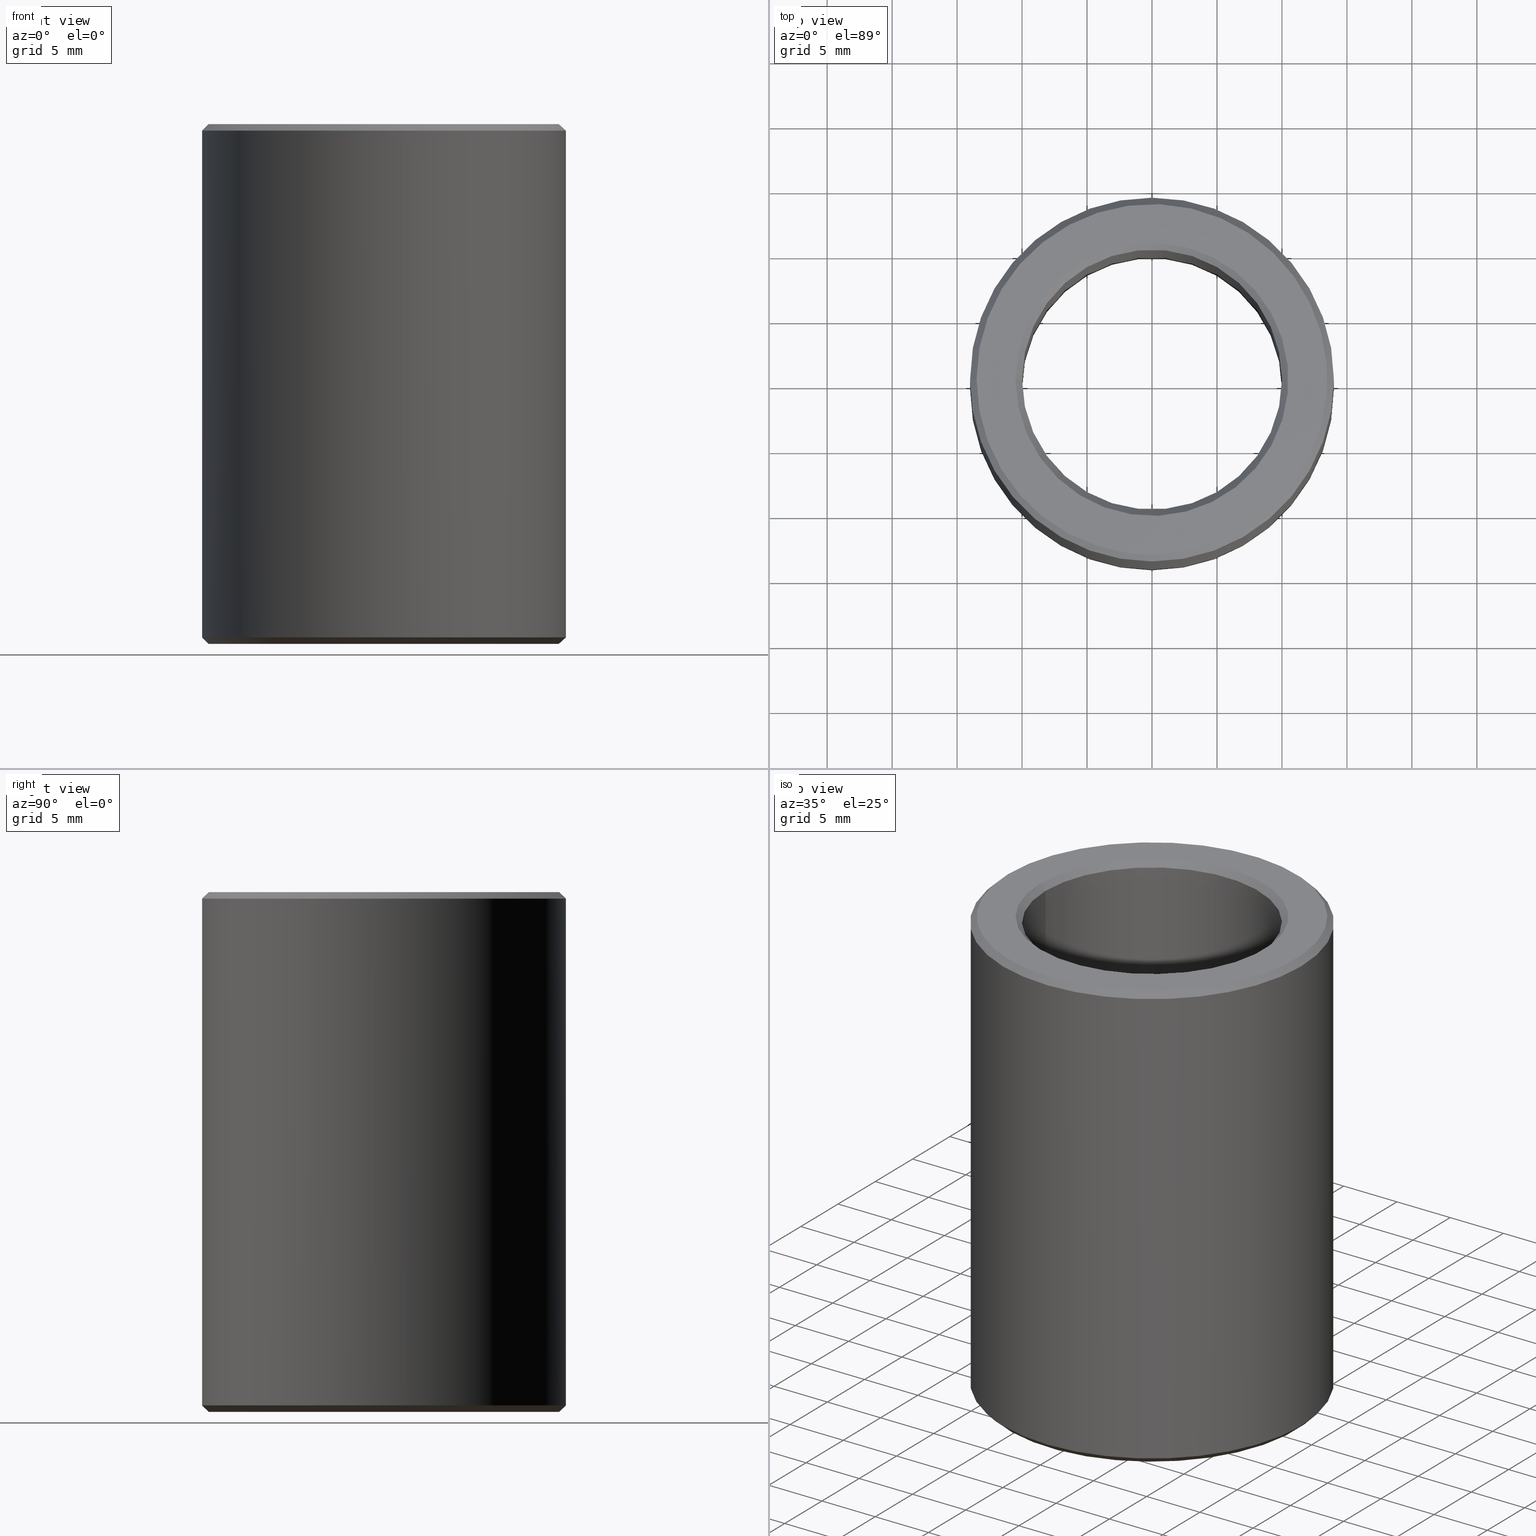
[diagram: canonical four-view strip — front | top / right | iso, engineering-drawing reading convention]
A machine part, canonical four-view strip (front | top / right | iso — engineering-drawing reading convention). The complete STEP part file that produces these views, byte-faithful:
ISO-10303-21;
HEADER;
FILE_DESCRIPTION(('STEP AP203'),'1');
FILE_NAME('580-LM2040.stp','2016-12-28T11:19:13',(' '),(' '),'Spatial InterOp 3D',' ',' ');
FILE_SCHEMA(('CONFIG_CONTROL_DESIGN'));
ENDSEC;
DATA;
#1=DESIGN_CONTEXT('',#51,'design');
#2=APPLICATION_PROTOCOL_DEFINITION('INTERNATIONAL STANDARD','config_control_design',1994,#51);
#3=PRODUCT_CATEGORY_RELATIONSHIP('NONE','NONE',#52,#53);
#4=DATE_AND_TIME(#54,#55);
#5=DATE_TIME_ROLE('creation_date');
#6=DATE_TIME_ROLE('classification_date');
#7=PERSON_AND_ORGANIZATION_ROLE('creator');
#8=PERSON_AND_ORGANIZATION_ROLE('design_supplier');
#9=PERSON_AND_ORGANIZATION_ROLE('classification_officer');
#10=PERSON_AND_ORGANIZATION_ROLE('design_owner');
#11=APPROVAL_PERSON_ORGANIZATION(#56,#57,#58);
#12=APPROVAL_DATE_TIME(#4,#57);
#13=CC_DESIGN_APPROVAL(#57,(#59,#60,#61));
#14=CC_DESIGN_DATE_AND_TIME_ASSIGNMENT(#4,#5,(#61));
#15=CC_DESIGN_DATE_AND_TIME_ASSIGNMENT(#4,#6,(#59));
#16=CC_DESIGN_PERSON_AND_ORGANIZATION_ASSIGNMENT(#56,#10,(#62));
#17=CC_DESIGN_PERSON_AND_ORGANIZATION_ASSIGNMENT(#56,#7,(#61));
#18=CC_DESIGN_PERSON_AND_ORGANIZATION_ASSIGNMENT(#56,#7,(#60));
#19=CC_DESIGN_PERSON_AND_ORGANIZATION_ASSIGNMENT(#56,#8,(#60));
#20=CC_DESIGN_SECURITY_CLASSIFICATION(#59,(#60));
#21=CC_DESIGN_PERSON_AND_ORGANIZATION_ASSIGNMENT(#56,#9,(#59));
#22=SHAPE_DEFINITION_REPRESENTATION(#63,#64);
#23=DESIGN_CONTEXT('',#65,'design');
#24=APPLICATION_PROTOCOL_DEFINITION('INTERNATIONAL STANDARD','config_control_design',1994,#65);
#25=PRODUCT_CATEGORY_RELATIONSHIP('NONE','NONE',#66,#67);
#26=DATE_AND_TIME(#68,#69);
#27=DATE_TIME_ROLE('creation_date');
#28=DATE_TIME_ROLE('classification_date');
#29=PERSON_AND_ORGANIZATION_ROLE('creator');
#30=PERSON_AND_ORGANIZATION_ROLE('design_supplier');
#31=PERSON_AND_ORGANIZATION_ROLE('classification_officer');
#32=PERSON_AND_ORGANIZATION_ROLE('design_owner');
#33=APPROVAL_PERSON_ORGANIZATION(#70,#71,#72);
#34=APPROVAL_DATE_TIME(#26,#71);
#35=CC_DESIGN_APPROVAL(#71,(#73,#74,#75));
#36=CC_DESIGN_DATE_AND_TIME_ASSIGNMENT(#26,#27,(#75));
#37=CC_DESIGN_DATE_AND_TIME_ASSIGNMENT(#26,#28,(#73));
#38=CC_DESIGN_PERSON_AND_ORGANIZATION_ASSIGNMENT(#70,#32,(#76));
#39=CC_DESIGN_PERSON_AND_ORGANIZATION_ASSIGNMENT(#70,#29,(#75));
#40=CC_DESIGN_PERSON_AND_ORGANIZATION_ASSIGNMENT(#70,#29,(#74));
#41=CC_DESIGN_PERSON_AND_ORGANIZATION_ASSIGNMENT(#70,#30,(#74));
#42=CC_DESIGN_SECURITY_CLASSIFICATION(#73,(#74));
#43=CC_DESIGN_PERSON_AND_ORGANIZATION_ASSIGNMENT(#70,#31,(#73));
#44=CONTEXT_DEPENDENT_SHAPE_REPRESENTATION(#77,#78);
#45=SHAPE_DEFINITION_REPRESENTATION(#79,#80);
#46=SHAPE_REPRESENTATION_RELATIONSHIP('NONE','NONE',#80,#81);
#47= (GEOMETRIC_REPRESENTATION_CONTEXT(3)GLOBAL_UNCERTAINTY_ASSIGNED_CONTEXT((#84))GLOBAL_UNIT_ASSIGNED_CONTEXT((#86,#87,#88))REPRESENTATION_CONTEXT('NONE','WORKSPACE'));
#51=APPLICATION_CONTEXT('CONFIGURATION CONTROLLED 3D DESIGNS OF MECHANICAL PARTS AND ASSEMBLIES');
#52=PRODUCT_CATEGORY('part','NONE');
#53=PRODUCT_RELATED_PRODUCT_CATEGORY('detail',' ',(#62));
#54=CALENDAR_DATE(2016,28,11);
#55=LOCAL_TIME(12,19,13.0,#90);
#56=PERSON_AND_ORGANIZATION(#91,#92);
#57=APPROVAL(#93,'SOLID MODEL');
#58=APPROVAL_ROLE('APPROVED');
#59=SECURITY_CLASSIFICATION('','',#94);
#60=PRODUCT_DEFINITION_FORMATION_WITH_SPECIFIED_SOURCE(' ','NONE',#62,.NOT_KNOWN.);
#61=PRODUCT_DEFINITION('NONE','NONE',#60,#1);
#62=PRODUCT('','','PART--DESC',(#95));
#63=PRODUCT_DEFINITION_SHAPE('NONE','NONE',#61);
#64=SHAPE_REPRESENTATION('',(#96,#97),#98);
#65=APPLICATION_CONTEXT('CONFIGURATION CONTROLLED 3D DESIGNS OF MECHANICAL PARTS AND ASSEMBLIES');
#66=PRODUCT_CATEGORY('part','NONE');
#67=PRODUCT_RELATED_PRODUCT_CATEGORY('detail',' ',(#76));
#68=CALENDAR_DATE(2016,28,11);
#69=LOCAL_TIME(12,19,13.0,#99);
#70=PERSON_AND_ORGANIZATION(#100,#101);
#71=APPROVAL(#102,'SOLID MODEL');
#72=APPROVAL_ROLE('APPROVED');
#73=SECURITY_CLASSIFICATION('','',#103);
#74=PRODUCT_DEFINITION_FORMATION_WITH_SPECIFIED_SOURCE(' ','NONE',#76,.NOT_KNOWN.);
#75=PRODUCT_DEFINITION('580-LM20x40','580-LM20x40',#74,#23);
#76=PRODUCT('580-LM20x40','580-LM20x40','PART-580-LM20x40-DESC',(#104));
#77=(REPRESENTATION_RELATIONSHIP('','',#80,#64)REPRESENTATION_RELATIONSHIP_WITH_TRANSFORMATION(#107)SHAPE_REPRESENTATION_RELATIONSHIP());
#78=PRODUCT_DEFINITION_SHAPE('NAUO-PROD-DEF','NAUO-PROD-DEF',#109);
#79=PRODUCT_DEFINITION_SHAPE('NONE','NONE',#75);
#80=SHAPE_REPRESENTATION('580-LM20x40',(#96),#98);
#81=ADVANCED_BREP_SHAPE_REPRESENTATION('',(#110),#47);
#84=UNCERTAINTY_MEASURE_WITH_UNIT(LENGTH_MEASURE(1.0E-006),#86,'','');
#86= (CONVERSION_BASED_UNIT('METRE',#113)LENGTH_UNIT()NAMED_UNIT(#116));
#87= (NAMED_UNIT(#118)PLANE_ANGLE_UNIT()SI_UNIT($,.RADIAN.));
#88= (NAMED_UNIT(#118)SOLID_ANGLE_UNIT()SI_UNIT($,.STERADIAN.));
#90=COORDINATED_UNIVERSAL_TIME_OFFSET(1,0,.AHEAD.);
#91=PERSON('','UNSPECIFIED',$,$,$,$);
#92=ORGANIZATION('UNSPECIFIED','UNSPECIFIED','UNSPECIFIED');
#93=APPROVAL_STATUS('approved');
#94=SECURITY_CLASSIFICATION_LEVEL('unclassified');
#95=MECHANICAL_CONTEXT('',#51,'mechanical');
#96=AXIS2_PLACEMENT_3D('',#124,#125,#126);
#97=AXIS2_PLACEMENT_3D('',#127,#128,#129);
#98= (GEOMETRIC_REPRESENTATION_CONTEXT(3)GLOBAL_UNCERTAINTY_ASSIGNED_CONTEXT((#132))GLOBAL_UNIT_ASSIGNED_CONTEXT((#134,#135,#136))REPRESENTATION_CONTEXT('NONE','WORKSPACE'));
#99=COORDINATED_UNIVERSAL_TIME_OFFSET(1,0,.AHEAD.);
#100=PERSON('','UNSPECIFIED',$,$,$,$);
#101=ORGANIZATION('UNSPECIFIED','UNSPECIFIED','UNSPECIFIED');
#102=APPROVAL_STATUS('approved');
#103=SECURITY_CLASSIFICATION_LEVEL('unclassified');
#104=MECHANICAL_CONTEXT('',#65,'mechanical');
#107=ITEM_DEFINED_TRANSFORMATION('','',#96,#97);
#109=NEXT_ASSEMBLY_USAGE_OCCURRENCE('580-LM20x40','580-LM20x40','580-LM20x40',#61,#75,$);
#110=MANIFOLD_SOLID_BREP('',#138);
#113=LENGTH_MEASURE_WITH_UNIT(LENGTH_MEASURE(1.0),#139);
#116=DIMENSIONAL_EXPONENTS(1.0,0.0,0.0,0.0,0.0,0.0,0.0);
#118=DIMENSIONAL_EXPONENTS(0.0,0.0,0.0,0.0,0.0,0.0,0.0);
#124=CARTESIAN_POINT('',(0.0,0.0,0.0));
#125=DIRECTION('',(0.0,0.0,1.0));
#126=DIRECTION('',(1.0,0.0,0.0));
#127=CARTESIAN_POINT('',(0.0,0.0,0.0));
#128=DIRECTION('',(5.48707263966374E-016,-5.48707263966374E-016,1.0));
#129=DIRECTION('',(-1.60812264967663E-016,1.0,5.48707263966374E-016));
#132=UNCERTAINTY_MEASURE_WITH_UNIT(LENGTH_MEASURE(1.0E-006),#134,'','');
#134= (CONVERSION_BASED_UNIT('METRE',#142)LENGTH_UNIT()NAMED_UNIT(#145));
#135= (NAMED_UNIT(#147)PLANE_ANGLE_UNIT()SI_UNIT($,.RADIAN.));
#136= (NAMED_UNIT(#147)SOLID_ANGLE_UNIT()SI_UNIT($,.STERADIAN.));
#138=CLOSED_SHELL('',(#153,#154,#155,#156,#157,#158,#159,#160,#161,#162,#163,#164,#165,#166,#167));
#139= (NAMED_UNIT(#116)LENGTH_UNIT()SI_UNIT($,.METRE.));
#142=LENGTH_MEASURE_WITH_UNIT(LENGTH_MEASURE(1.0),#169);
#145=DIMENSIONAL_EXPONENTS(1.0,0.0,0.0,0.0,0.0,0.0,0.0);
#147=DIMENSIONAL_EXPONENTS(0.0,0.0,0.0,0.0,0.0,0.0,0.0);
#153=ADVANCED_FACE('',(#170),#171,.F.);
#154=ADVANCED_FACE('',(#172),#173,.T.);
#155=ADVANCED_FACE('',(#174),#175,.F.);
#156=ADVANCED_FACE('',(#176,#177,#178),#179,.F.);
#157=ADVANCED_FACE('',(#180,#181),#182,.F.);
#158=ADVANCED_FACE('',(#183,#184),#185,.F.);
#159=ADVANCED_FACE('',(#186,#187),#188,.T.);
#160=ADVANCED_FACE('',(#189,#190),#191,.T.);
#161=ADVANCED_FACE('',(#192,#193),#194,.T.);
#162=ADVANCED_FACE('',(#195,#196),#197,.T.);
#163=ADVANCED_FACE('',(#198,#199),#200,.T.);
#164=ADVANCED_FACE('',(#201),#202,.F.);
#165=ADVANCED_FACE('',(#203),#204,.F.);
#166=ADVANCED_FACE('',(#205),#206,.T.);
#167=ADVANCED_FACE('',(#207),#208,.F.);
#169= (NAMED_UNIT(#145)LENGTH_UNIT()SI_UNIT($,.METRE.));
#170=FACE_OUTER_BOUND('',#210,.T.);
#171=CYLINDRICAL_SURFACE('',#211,0.00075);
#172=FACE_OUTER_BOUND('',#212,.T.);
#173=PLANE('',#213);
#174=FACE_OUTER_BOUND('',#214,.T.);
#175=CYLINDRICAL_SURFACE('',#215,0.00075);
#176=FACE_OUTER_BOUND('',#216,.T.);
#177=FACE_OUTER_BOUND('',#217,.T.);
#178=FACE_BOUND('',#218,.T.);
#179=CYLINDRICAL_SURFACE('',#219,0.01);
#180=FACE_BOUND('',#220,.T.);
#181=FACE_OUTER_BOUND('',#221,.T.);
#182=CONICAL_SURFACE('',#222,0.0105,0.785398163397448);
#183=FACE_OUTER_BOUND('',#223,.T.);
#184=FACE_BOUND('',#224,.T.);
#185=CONICAL_SURFACE('',#225,0.01,0.785398163397446);
#186=FACE_OUTER_BOUND('',#226,.T.);
#187=FACE_BOUND('',#227,.T.);
#188=PLANE('',#228);
#189=FACE_OUTER_BOUND('',#229,.T.);
#190=FACE_BOUND('',#230,.T.);
#191=CONICAL_SURFACE('',#231,0.0135,0.785398163397432);
#192=FACE_OUTER_BOUND('',#232,.T.);
#193=FACE_OUTER_BOUND('',#233,.T.);
#194=CYLINDRICAL_SURFACE('',#234,0.014);
#195=FACE_BOUND('',#235,.T.);
#196=FACE_OUTER_BOUND('',#236,.T.);
#197=CONICAL_SURFACE('',#237,0.014,0.785398163397448);
#198=FACE_BOUND('',#238,.T.);
#199=FACE_OUTER_BOUND('',#239,.T.);
#200=PLANE('',#240);
#201=FACE_OUTER_BOUND('',#241,.T.);
#202=SPHERICAL_SURFACE('',#242,0.00075);
#203=FACE_OUTER_BOUND('',#243,.T.);
#204=SPHERICAL_SURFACE('',#244,0.00075);
#205=FACE_OUTER_BOUND('',#245,.T.);
#206=PLANE('',#246);
#207=FACE_OUTER_BOUND('',#247,.T.);
#208=CYLINDRICAL_SURFACE('',#248,0.00075);
#210=EDGE_LOOP('',(#249,#250,#251,#252));
#211=AXIS2_PLACEMENT_3D('',#253,#254,#255);
#212=EDGE_LOOP('',(#256,#257,#258,#259));
#213=AXIS2_PLACEMENT_3D('',#260,#261,#262);
#214=EDGE_LOOP('',(#263,#264,#265,#266));
#215=AXIS2_PLACEMENT_3D('',#267,#268,#269);
#216=EDGE_LOOP('',(#270));
#217=EDGE_LOOP('',(#271));
#218=EDGE_LOOP('',(#272,#273,#274,#275));
#219=AXIS2_PLACEMENT_3D('',#276,#277,#278);
#220=EDGE_LOOP('',(#279));
#221=EDGE_LOOP('',(#280));
#222=AXIS2_PLACEMENT_3D('',#281,#282,#283);
#223=EDGE_LOOP('',(#284));
#224=EDGE_LOOP('',(#285));
#225=AXIS2_PLACEMENT_3D('',#286,#287,#288);
#226=EDGE_LOOP('',(#289));
#227=EDGE_LOOP('',(#290));
#228=AXIS2_PLACEMENT_3D('',#291,#292,#293);
#229=EDGE_LOOP('',(#294));
#230=EDGE_LOOP('',(#295));
#231=AXIS2_PLACEMENT_3D('',#296,#297,#298);
#232=EDGE_LOOP('',(#299));
#233=EDGE_LOOP('',(#300));
#234=AXIS2_PLACEMENT_3D('',#301,#302,#303);
#235=EDGE_LOOP('',(#304));
#236=EDGE_LOOP('',(#305));
#237=AXIS2_PLACEMENT_3D('',#306,#307,#308);
#238=EDGE_LOOP('',(#309));
#239=EDGE_LOOP('',(#310));
#240=AXIS2_PLACEMENT_3D('',#311,#312,#313);
#241=EDGE_LOOP('',(#314,#315));
#242=AXIS2_PLACEMENT_3D('',#316,#317,#318);
#243=EDGE_LOOP('',(#319,#320));
#244=AXIS2_PLACEMENT_3D('',#321,#322,#323);
#245=EDGE_LOOP('',(#324,#325,#326,#327));
#246=AXIS2_PLACEMENT_3D('',#328,#329,#330);
#247=EDGE_LOOP('',(#331,#332,#333,#334));
#248=AXIS2_PLACEMENT_3D('',#335,#336,#337);
#249=ORIENTED_EDGE('',*,*,#338,.F.);
#250=ORIENTED_EDGE('',*,*,#339,.T.);
#251=ORIENTED_EDGE('',*,*,#340,.T.);
#252=ORIENTED_EDGE('',*,*,#341,.F.);
#253=CARTESIAN_POINT('',(2.60208521396521E-018,-0.011,0.00375));
#254=DIRECTION('',(0.0,1.0,0.0));
#255=DIRECTION('',(0.0,0.0,1.0));
#256=ORIENTED_EDGE('',*,*,#342,.F.);
#257=ORIENTED_EDGE('',*,*,#343,.T.);
#258=ORIENTED_EDGE('',*,*,#338,.T.);
#259=ORIENTED_EDGE('',*,*,#344,.F.);
#260=CARTESIAN_POINT('',(-0.00075,-0.011,0.03625));
#261=DIRECTION('',(1.0,0.0,1.23432247329119E-016));
#262=DIRECTION('',(-1.23432247329119E-016,0.0,1.0));
#263=ORIENTED_EDGE('',*,*,#345,.F.);
#264=ORIENTED_EDGE('',*,*,#346,.T.);
#265=ORIENTED_EDGE('',*,*,#342,.T.);
#266=ORIENTED_EDGE('',*,*,#347,.F.);
#267=CARTESIAN_POINT('',(6.50521303491303E-019,-0.011,0.03625));
#268=DIRECTION('',(0.0,1.0,0.0));
#269=DIRECTION('',(0.0,0.0,1.0));
#270=ORIENTED_EDGE('',*,*,#348,.T.);
#271=ORIENTED_EDGE('',*,*,#349,.F.);
#272=ORIENTED_EDGE('',*,*,#350,.T.);
#273=ORIENTED_EDGE('',*,*,#347,.T.);
#274=ORIENTED_EDGE('',*,*,#344,.T.);
#275=ORIENTED_EDGE('',*,*,#341,.T.);
#276=CARTESIAN_POINT('',(0.0,0.0,-1.0842021724855E-019));
#277=DIRECTION('',(0.0,-6.12323399573677E-017,-1.0));
#278=DIRECTION('',(0.0,1.0,-6.12323399573677E-017));
#279=ORIENTED_EDGE('',*,*,#349,.T.);
#280=ORIENTED_EDGE('',*,*,#351,.F.);
#281=CARTESIAN_POINT('',(0.0,0.0,0.04));
#282=DIRECTION('',(-0.0,6.12323399573677E-017,1.0));
#283=DIRECTION('',(0.0,-1.0,6.12323399573677E-017));
#284=ORIENTED_EDGE('',*,*,#352,.T.);
#285=ORIENTED_EDGE('',*,*,#348,.F.);
#286=CARTESIAN_POINT('',(0.0,0.0,0.0005));
#287=DIRECTION('',(0.0,-6.12323399573677E-017,-1.0));
#288=DIRECTION('',(0.0,1.0,-6.12323399573677E-017));
#289=ORIENTED_EDGE('',*,*,#353,.T.);
#290=ORIENTED_EDGE('',*,*,#352,.F.);
#291=CARTESIAN_POINT('',(0.0105,0.0,-2.22261445359529E-018));
#292=DIRECTION('',(0.0,-6.12323399573677E-017,-1.0));
#293=DIRECTION('',(0.0,1.0,-6.12323399573677E-017));
#294=ORIENTED_EDGE('',*,*,#354,.T.);
#295=ORIENTED_EDGE('',*,*,#353,.F.);
#296=CARTESIAN_POINT('',(0.0,0.0,-2.05998412772246E-018));
#297=DIRECTION('',(-0.0,6.12323399573677E-017,1.0));
#298=DIRECTION('',(0.0,-1.0,6.12323399573677E-017));
#299=ORIENTED_EDGE('',*,*,#355,.T.);
#300=ORIENTED_EDGE('',*,*,#354,.F.);
#301=CARTESIAN_POINT('',(0.0,0.0,-1.0842021724855E-019));
#302=DIRECTION('',(0.0,-6.12323399573677E-017,-1.0));
#303=DIRECTION('',(0.0,1.0,-6.12323399573677E-017));
#304=ORIENTED_EDGE('',*,*,#356,.T.);
#305=ORIENTED_EDGE('',*,*,#355,.F.);
#306=CARTESIAN_POINT('',(0.0,0.0,0.0395));
#307=DIRECTION('',(0.0,-6.12323399573677E-017,-1.0));
#308=DIRECTION('',(0.0,1.0,-6.12323399573677E-017));
#309=ORIENTED_EDGE('',*,*,#351,.T.);
#310=ORIENTED_EDGE('',*,*,#356,.F.);
#311=CARTESIAN_POINT('',(0.0135,0.0,0.04));
#312=DIRECTION('',(0.0,6.12323399573677E-017,1.0));
#313=DIRECTION('',(0.0,-1.0,6.12323399573677E-017));
#314=ORIENTED_EDGE('',*,*,#357,.F.);
#315=ORIENTED_EDGE('',*,*,#346,.F.);
#316=CARTESIAN_POINT('',(6.50521303491303E-019,-0.01025,0.03625));
#317=DIRECTION('',(0.0,-1.0,0.0));
#318=DIRECTION('',(0.0,0.0,-1.0));
#319=ORIENTED_EDGE('',*,*,#339,.F.);
#320=ORIENTED_EDGE('',*,*,#358,.T.);
#321=CARTESIAN_POINT('',(2.60208521396521E-018,-0.01025,0.00375));
#322=DIRECTION('',(0.0,-1.0,0.0));
#323=DIRECTION('',(0.0,0.0,-1.0));
#324=ORIENTED_EDGE('',*,*,#340,.F.);
#325=ORIENTED_EDGE('',*,*,#359,.T.);
#326=ORIENTED_EDGE('',*,*,#345,.T.);
#327=ORIENTED_EDGE('',*,*,#350,.F.);
#328=CARTESIAN_POINT('',(0.00075,-0.011,0.00375));
#329=DIRECTION('',(-1.0,0.0,0.0));
#330=DIRECTION('',(0.0,1.0,0.0));
#331=ORIENTED_EDGE('',*,*,#343,.F.);
#332=ORIENTED_EDGE('',*,*,#357,.T.);
#333=ORIENTED_EDGE('',*,*,#359,.F.);
#334=ORIENTED_EDGE('',*,*,#358,.F.);
#335=CARTESIAN_POINT('',(-1.3010426069826E-018,-0.01025,0.03625));
#336=DIRECTION('',(1.23432247329119E-016,0.0,-1.0));
#337=DIRECTION('',(-1.0,0.0,-1.23432247329119E-016));
#338=EDGE_CURVE('',#360,#361,#362,.T.);
#339=EDGE_CURVE('',#360,#363,#364,.F.);
#340=EDGE_CURVE('',#363,#365,#366,.T.);
#341=EDGE_CURVE('',#361,#365,#367,.T.);
#342=EDGE_CURVE('',#368,#369,#370,.T.);
#343=EDGE_CURVE('',#368,#360,#371,.T.);
#344=EDGE_CURVE('',#369,#361,#372,.T.);
#345=EDGE_CURVE('',#373,#374,#375,.T.);
#346=EDGE_CURVE('',#373,#368,#376,.F.);
#347=EDGE_CURVE('',#374,#369,#377,.T.);
#348=EDGE_CURVE('',#378,#378,#379,.T.);
#349=EDGE_CURVE('',#380,#380,#381,.T.);
#350=EDGE_CURVE('',#365,#374,#382,.F.);
#351=EDGE_CURVE('',#383,#383,#384,.T.);
#352=EDGE_CURVE('',#385,#385,#386,.T.);
#353=EDGE_CURVE('',#387,#387,#388,.T.);
#354=EDGE_CURVE('',#389,#389,#390,.T.);
#355=EDGE_CURVE('',#391,#391,#392,.T.);
#356=EDGE_CURVE('',#393,#393,#394,.T.);
#357=EDGE_CURVE('',#368,#373,#395,.T.);
#358=EDGE_CURVE('',#360,#363,#396,.T.);
#359=EDGE_CURVE('',#363,#373,#397,.T.);
#360=VERTEX_POINT('',#398);
#361=VERTEX_POINT('',#399);
#362=LINE('',#400,#401);
#363=VERTEX_POINT('',#402);
#364=CIRCLE('',#403,0.00075);
#365=VERTEX_POINT('',#404);
#366=LINE('',#405,#406);
#367=B_SPLINE_CURVE_WITH_KNOTS('',3,(#407,#408,#409,#410,#411,#412,#413,#414,#415,#416,#417,#418,#419,#420),.UNSPECIFIED.,.F.,.F.,(4,2,2,2,2,2,4),(0.0,0.00029314530910994,0.000586290618219879,0.00117258123643976,0.0014657265455497,0.00175887185465964,0.00234516247287952),.UNSPECIFIED.);
#368=VERTEX_POINT('',#421);
#369=VERTEX_POINT('',#422);
#370=LINE('',#423,#424);
#371=LINE('',#425,#426);
#372=LINE('',#427,#428);
#373=VERTEX_POINT('',#429);
#374=VERTEX_POINT('',#430);
#375=LINE('',#431,#432);
#376=CIRCLE('',#433,0.00075);
#377=B_SPLINE_CURVE_WITH_KNOTS('',3,(#434,#435,#436,#437,#438,#439,#440,#441,#442,#443,#444,#445,#446,#447),.UNSPECIFIED.,.F.,.F.,(4,2,2,2,2,2,4),(0.0,0.000293145309109937,0.000586290618219873,0.00117258123643975,0.00146572654554968,0.00175887185465962,0.00234516247287951),.UNSPECIFIED.);
#378=VERTEX_POINT('',#448);
#379=CIRCLE('',#449,0.01);
#380=VERTEX_POINT('',#450);
#381=CIRCLE('',#451,0.01);
#382=LINE('',#452,#453);
#383=VERTEX_POINT('',#454);
#384=CIRCLE('',#455,0.0105);
#385=VERTEX_POINT('',#456);
#386=CIRCLE('',#457,0.0105);
#387=VERTEX_POINT('',#458);
#388=CIRCLE('',#459,0.0135);
#389=VERTEX_POINT('',#460);
#390=CIRCLE('',#461,0.014);
#391=VERTEX_POINT('',#462);
#392=CIRCLE('',#463,0.014);
#393=VERTEX_POINT('',#464);
#394=CIRCLE('',#465,0.0135);
#395=CIRCLE('',#466,0.00075);
#396=CIRCLE('',#467,0.00075);
#397=LINE('',#468,#469);
#398=CARTESIAN_POINT('',(-0.00075,-0.01025,0.00375));
#399=CARTESIAN_POINT('',(-0.00075,-0.00997183533758956,0.00375));
#400=CARTESIAN_POINT('',(-0.00075,-0.011,0.00375));
#401=VECTOR('',#470,1.0);
#402=CARTESIAN_POINT('',(0.00075,-0.01025,0.00375));
#403=AXIS2_PLACEMENT_3D('',#471,#472,#473);
#404=CARTESIAN_POINT('',(0.00075,-0.00997183533758956,0.00375));
#405=CARTESIAN_POINT('',(0.00075,-0.011,0.00375));
#406=VECTOR('',#474,1.0);
#407=CARTESIAN_POINT('',(-0.00075,-0.00997183533758956,0.00375));
#408=CARTESIAN_POINT('',(-0.00075,-0.00997183533758956,0.00365087528467168));
#409=CARTESIAN_POINT('',(-0.000730475795910075,-0.00997335595511548,0.00355361065737769));
#410=CARTESIAN_POINT('',(-0.00065518805669987,-0.0099785846945449,0.00337198905748123));
#411=CARTESIAN_POINT('',(-0.000599480080025492,-0.00998225526719024,0.00328881731726457));
#412=CARTESIAN_POINT('',(-0.000392000292515642,-0.00999327384361332,0.00308134530325637));
#413=CARTESIAN_POINT('',(-0.000196222549634054,-0.00999998979246334,0.00300013610052145));
#414=CARTESIAN_POINT('',(9.73299347138204E-005,-0.0100000050834186,0.00299993222106924));
#415=CARTESIAN_POINT('',(0.000195648058993087,-0.00999849872872351,0.00301932980094186));
#416=CARTESIAN_POINT('',(0.000377287448069184,-0.00999329320958826,0.00309440005772662));
#417=CARTESIAN_POINT('',(0.000459903820221092,-0.00998966514636002,0.00314934238886248));
#418=CARTESIAN_POINT('',(0.000670063160067619,-0.00997851193327625,0.00335920629456741));
#419=CARTESIAN_POINT('',(0.00075,-0.00997183533758956,0.00355175082650246));
#420=CARTESIAN_POINT('',(0.00075,-0.00997183533758956,0.00375));
#421=CARTESIAN_POINT('',(-0.00075,-0.01025,0.03625));
#422=CARTESIAN_POINT('',(-0.00075,-0.00997183533758956,0.03625));
#423=CARTESIAN_POINT('',(-0.00075,-0.011,0.03625));
#424=VECTOR('',#475,1.0);
#425=CARTESIAN_POINT('',(-0.00075,-0.01025,0.03625));
#426=VECTOR('',#476,1.0);
#427=CARTESIAN_POINT('',(-0.00075,-0.00997183533758956,4.09604408644787E-019));
#428=VECTOR('',#477,1.0);
#429=CARTESIAN_POINT('',(0.00075,-0.01025,0.03625));
#430=CARTESIAN_POINT('',(0.00075,-0.00997183533758956,0.03625));
#431=CARTESIAN_POINT('',(0.00075,-0.011,0.03625));
#432=VECTOR('',#478,1.0);
#433=AXIS2_PLACEMENT_3D('',#479,#480,#481);
#434=CARTESIAN_POINT('',(0.00075,-0.00997183533758956,0.03625));
#435=CARTESIAN_POINT('',(0.00075,-0.00997183533758956,0.0363491247153283));
#436=CARTESIAN_POINT('',(0.000730475795910077,-0.00997335595511548,0.0364463893426223));
#437=CARTESIAN_POINT('',(0.000655188056699873,-0.0099785846945449,0.0366280109425188));
#438=CARTESIAN_POINT('',(0.000599480080025491,-0.00998225526719024,0.0367111826827354));
#439=CARTESIAN_POINT('',(0.00039200029251565,-0.00999327384361332,0.0369186546967436));
#440=CARTESIAN_POINT('',(0.000196222549634047,-0.00999998979246334,0.0369998638994785));
#441=CARTESIAN_POINT('',(-9.73299347138095E-005,-0.0100000050834186,0.0370000677789308));
#442=CARTESIAN_POINT('',(-0.000195648058993085,-0.00999849872872351,0.0369806701990581));
#443=CARTESIAN_POINT('',(-0.000377287448069171,-0.00999329320958826,0.0369055999422734));
#444=CARTESIAN_POINT('',(-0.000459903820221087,-0.00998966514636002,0.0368506576111375));
#445=CARTESIAN_POINT('',(-0.0006700631600676,-0.00997851193327625,0.0366407937054326));
#446=CARTESIAN_POINT('',(-0.00075,-0.00997183533758956,0.0364482491734976));
#447=CARTESIAN_POINT('',(-0.00075,-0.00997183533758956,0.03625));
#448=CARTESIAN_POINT('',(0.0,0.01,0.0005));
#449=AXIS2_PLACEMENT_3D('',#482,#483,#484);
#450=CARTESIAN_POINT('',(0.0,0.01,0.0395));
#451=AXIS2_PLACEMENT_3D('',#485,#486,#487);
#452=CARTESIAN_POINT('',(0.00075,-0.00997183533758956,5.02178594141626E-019));
#453=VECTOR('',#488,1.0);
#454=CARTESIAN_POINT('',(0.0,0.0105,0.04));
#455=AXIS2_PLACEMENT_3D('',#489,#490,#491);
#456=CARTESIAN_POINT('',(0.0,0.0105,-3.02818434902047E-018));
#457=AXIS2_PLACEMENT_3D('',#492,#493,#494);
#458=CARTESIAN_POINT('',(0.0,0.0135,-2.88662071714692E-018));
#459=AXIS2_PLACEMENT_3D('',#495,#496,#497);
#460=CARTESIAN_POINT('',(0.0,0.014,0.0005));
#461=AXIS2_PLACEMENT_3D('',#498,#499,#500);
#462=CARTESIAN_POINT('',(0.0,0.014,0.0395));
#463=AXIS2_PLACEMENT_3D('',#501,#502,#503);
#464=CARTESIAN_POINT('',(0.0,0.0135,0.04));
#465=AXIS2_PLACEMENT_3D('',#504,#505,#506);
#466=AXIS2_PLACEMENT_3D('',#507,#508,#509);
#467=AXIS2_PLACEMENT_3D('',#510,#511,#512);
#468=CARTESIAN_POINT('',(0.00075,-0.01025,0.00375));
#469=VECTOR('',#513,1.0);
#470=DIRECTION('',(0.0,1.0,0.0));
#471=CARTESIAN_POINT('',(2.60208521396521E-018,-0.01025,0.00375));
#472=DIRECTION('',(0.0,1.0,0.0));
#473=DIRECTION('',(0.0,0.0,1.0));
#474=DIRECTION('',(0.0,1.0,0.0));
#475=DIRECTION('',(0.0,1.0,0.0));
#476=DIRECTION('',(1.23432247329119E-016,0.0,-1.0));
#477=DIRECTION('',(0.0,-6.12323399573677E-017,-1.0));
#478=DIRECTION('',(0.0,1.0,0.0));
#479=CARTESIAN_POINT('',(6.50521303491303E-019,-0.01025,0.03625));
#480=DIRECTION('',(0.0,1.0,0.0));
#481=DIRECTION('',(0.0,0.0,1.0));
#482=CARTESIAN_POINT('',(0.0,0.0,0.0005));
#483=DIRECTION('',(0.0,-6.12323399573677E-017,-1.0));
#484=DIRECTION('',(0.0,1.0,-6.12323399573677E-017));
#485=CARTESIAN_POINT('',(0.0,0.0,0.0395));
#486=DIRECTION('',(0.0,-6.12323399573677E-017,-1.0));
#487=DIRECTION('',(0.0,1.0,-6.12323399573677E-017));
#488=DIRECTION('',(0.0,-6.12323399573677E-017,-1.0));
#489=CARTESIAN_POINT('',(0.0,0.0,0.04));
#490=DIRECTION('',(0.0,-6.12323399573677E-017,-1.0));
#491=DIRECTION('',(0.0,1.0,-6.12323399573677E-017));
#492=CARTESIAN_POINT('',(0.0,0.0,-2.38524477946811E-018));
#493=DIRECTION('',(0.0,-6.12323399573677E-017,-1.0));
#494=DIRECTION('',(0.0,1.0,-6.12323399573677E-017));
#495=CARTESIAN_POINT('',(0.0,0.0,-2.05998412772246E-018));
#496=DIRECTION('',(0.0,-6.12323399573677E-017,-1.0));
#497=DIRECTION('',(0.0,1.0,-6.12323399573677E-017));
#498=CARTESIAN_POINT('',(0.0,0.0,0.0005));
#499=DIRECTION('',(0.0,-6.12323399573677E-017,-1.0));
#500=DIRECTION('',(0.0,1.0,-6.12323399573677E-017));
#501=CARTESIAN_POINT('',(0.0,0.0,0.0395));
#502=DIRECTION('',(0.0,-6.12323399573677E-017,-1.0));
#503=DIRECTION('',(0.0,1.0,-6.12323399573677E-017));
#504=CARTESIAN_POINT('',(0.0,0.0,0.04));
#505=DIRECTION('',(0.0,-6.12323399573677E-017,-1.0));
#506=DIRECTION('',(0.0,1.0,-6.12323399573677E-017));
#507=CARTESIAN_POINT('',(-1.3010426069826E-018,-0.01025,0.03625));
#508=DIRECTION('',(4.62592926927149E-014,1.20370621524202E-028,1.0));
#509=DIRECTION('',(1.0,0.0,-4.62592926927149E-014));
#510=CARTESIAN_POINT('',(2.71050543121376E-018,-0.01025,0.00375));
#511=DIRECTION('',(0.0,5.55111512312578E-014,1.0));
#512=DIRECTION('',(0.0,-1.0,5.55111512312578E-014));
#513=DIRECTION('',(0.0,0.0,1.0));
ENDSEC;
END-ISO-10303-21;
